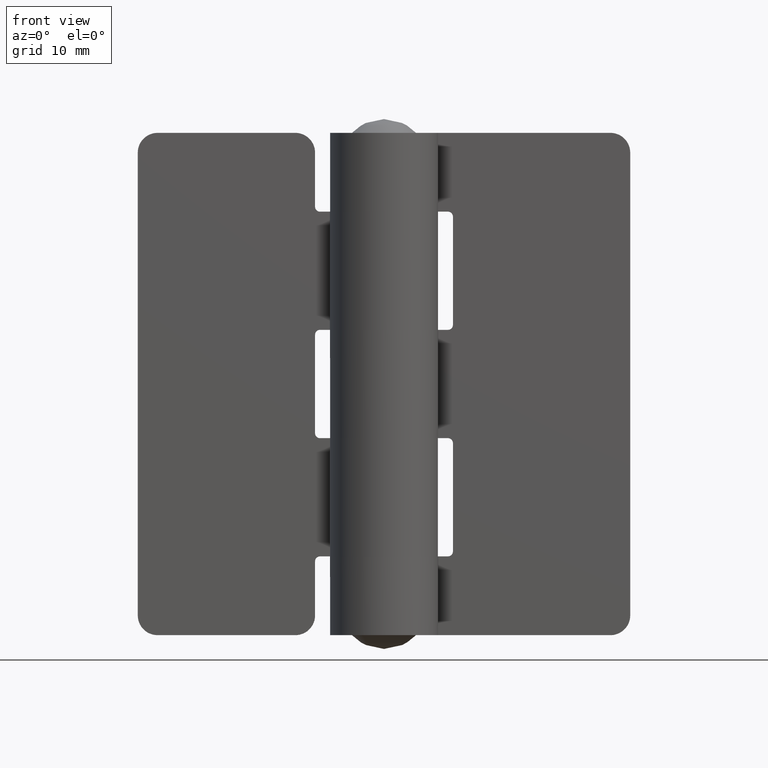
[diagram: clean part render]
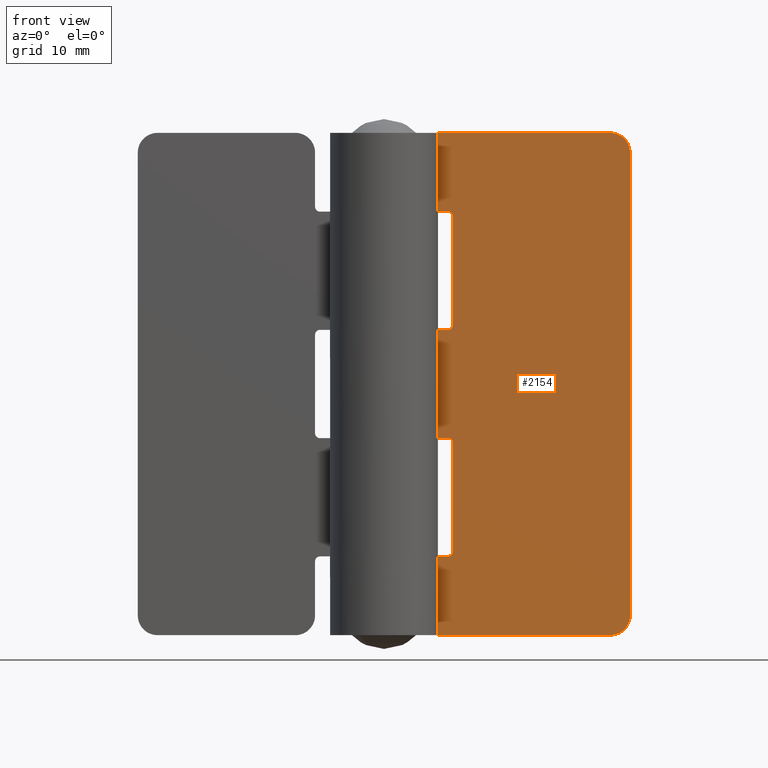
[diagram: same view with one face highlighted and labeled with its STEP entity id]
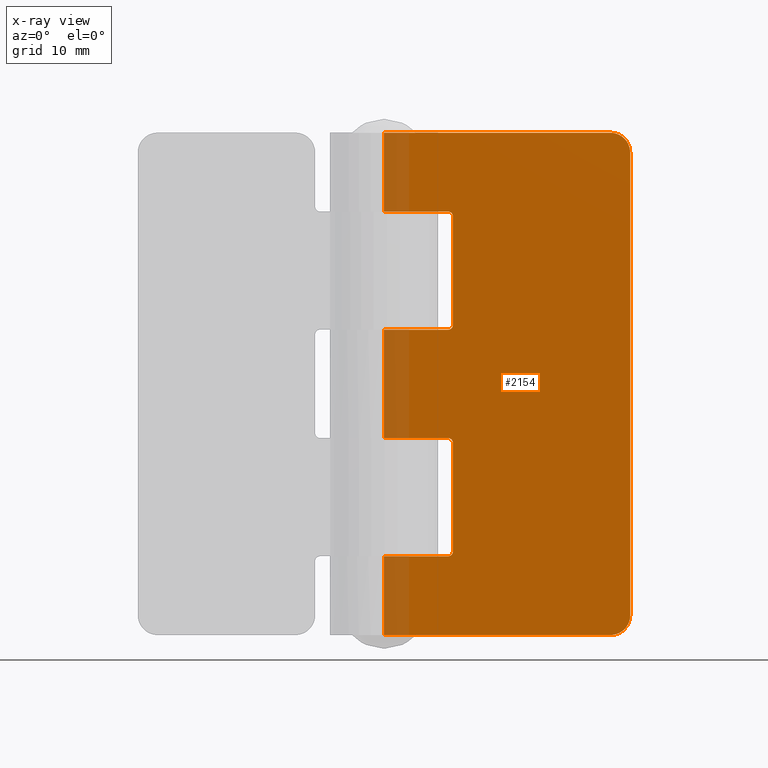
[diagram: x-ray of the same camera — body ghosted, the highlighted face saturated]
A machine part, front view. The second image highlights one B-rep face of the part: STEP entity #2154.
The next image is the same camera in x-ray: the body ghosted, the highlighted face saturated — about 6% of this face is hidden behind the body in this view.
In plain terms, the highlighted face is a freeform B-spline surface patch.
Its self-contained STEP definition (entity closure, byte-faithful):
#1215=CARTESIAN_POINT('',(6.499999999999900,2.999999000000000,20.0));
#1216=VERTEX_POINT('',#1215);
#1217=CARTESIAN_POINT('',(6.999999999999901,2.999999000000000,19.500000000000000));
#1218=VERTEX_POINT('',#1217);
#1219=CARTESIAN_POINT('',(6.499999999999900,2.999999000000000,20.0));
#1220=CARTESIAN_POINT('',(6.999999999999899,2.999999000000001,19.999999999999996));
#1221=CARTESIAN_POINT('',(6.999999999999901,2.999999000000000,19.500000000000000));
#1229=(BOUNDED_CURVE()B_SPLINE_CURVE(2,(#1219,#1220,#1221),.UNSPECIFIED.,.F.,.U.)CURVE()GEOMETRIC_REPRESENTATION_ITEM()QUASI_UNIFORM_CURVE()RATIONAL_B_SPLINE_CURVE((1.0,0.707106781186548,1.0))REPRESENTATION_ITEM(''));
#1230=EDGE_CURVE('',#1216,#1218,#1229,.T.);
#1276=CARTESIAN_POINT('',(6.999999999999901,2.999999000000000,8.500000000000000));
#1277=VERTEX_POINT('',#1276);
#1278=CARTESIAN_POINT('',(6.499999999999900,2.999999000000000,8.0));
#1279=VERTEX_POINT('',#1278);
#1280=CARTESIAN_POINT('',(6.999999999999901,2.999999000000000,8.500000000000000));
#1281=CARTESIAN_POINT('',(6.999999999999899,2.999999000000001,8.0));
#1282=CARTESIAN_POINT('',(6.499999999999900,2.999999000000000,8.0));
#1290=(BOUNDED_CURVE()B_SPLINE_CURVE(2,(#1280,#1281,#1282),.UNSPECIFIED.,.F.,.U.)CURVE()GEOMETRIC_REPRESENTATION_ITEM()QUASI_UNIFORM_CURVE()RATIONAL_B_SPLINE_CURVE((1.0,0.707106781186548,1.0))REPRESENTATION_ITEM(''));
#1291=EDGE_CURVE('',#1277,#1279,#1290,.T.);
#1337=CARTESIAN_POINT('',(6.499999999999900,2.999999000000000,43.0));
#1338=VERTEX_POINT('',#1337);
#1339=CARTESIAN_POINT('',(6.999999999999901,2.999999000000000,42.500000000000000));
#1340=VERTEX_POINT('',#1339);
#1341=CARTESIAN_POINT('',(6.499999999999900,2.999999000000000,43.0));
#1342=CARTESIAN_POINT('',(6.999999999999899,2.999999000000001,42.999999999999993));
#1343=CARTESIAN_POINT('',(6.999999999999901,2.999999000000000,42.500000000000000));
#1351=(BOUNDED_CURVE()B_SPLINE_CURVE(2,(#1341,#1342,#1343),.UNSPECIFIED.,.F.,.U.)CURVE()GEOMETRIC_REPRESENTATION_ITEM()QUASI_UNIFORM_CURVE()RATIONAL_B_SPLINE_CURVE((1.0,0.707106781186548,1.0))REPRESENTATION_ITEM(''));
#1352=EDGE_CURVE('',#1338,#1340,#1351,.T.);
#1398=CARTESIAN_POINT('',(6.999999999999901,2.999999000000000,31.500000000000000));
#1399=VERTEX_POINT('',#1398);
#1400=CARTESIAN_POINT('',(6.499999999999900,2.999999000000000,31.0));
#1401=VERTEX_POINT('',#1400);
#1402=CARTESIAN_POINT('',(6.999999999999901,2.999999000000000,31.500000000000000));
#1403=CARTESIAN_POINT('',(6.999999999999899,2.999999000000001,31.000000000000007));
#1404=CARTESIAN_POINT('',(6.499999999999900,2.999999000000000,31.0));
#1412=(BOUNDED_CURVE()B_SPLINE_CURVE(2,(#1402,#1403,#1404),.UNSPECIFIED.,.F.,.U.)CURVE()GEOMETRIC_REPRESENTATION_ITEM()QUASI_UNIFORM_CURVE()RATIONAL_B_SPLINE_CURVE((1.0,0.707106781186548,1.0))REPRESENTATION_ITEM(''));
#1413=EDGE_CURVE('',#1399,#1401,#1412,.T.);
#1476=CARTESIAN_POINT('',(23.000008000000001,2.999999000000000,51.0));
#1477=VERTEX_POINT('',#1476);
#1483=CARTESIAN_POINT('',(25.000008000000001,2.999999000000000,49.0));
#1484=VERTEX_POINT('',#1483);
#1485=CARTESIAN_POINT('',(25.000008000000001,2.999999000000000,49.0));
#1486=CARTESIAN_POINT('',(25.000008000000005,2.999999000000001,51.000000000000007));
#1487=CARTESIAN_POINT('',(23.000008000000001,2.999999000000000,51.000000000000007));
#1495=(BOUNDED_CURVE()B_SPLINE_CURVE(2,(#1485,#1486,#1487),.UNSPECIFIED.,.F.,.U.)CURVE()GEOMETRIC_REPRESENTATION_ITEM()QUASI_UNIFORM_CURVE()RATIONAL_B_SPLINE_CURVE((1.0,0.707106781186548,1.0))REPRESENTATION_ITEM(''));
#1496=EDGE_CURVE('',#1484,#1477,#1495,.T.);
#1537=CARTESIAN_POINT('',(25.000008000000001,2.999999000000000,2.0));
#1538=VERTEX_POINT('',#1537);
#1544=CARTESIAN_POINT('',(23.000008000000001,2.999999000000000,0.0));
#1545=VERTEX_POINT('',#1544);
#1546=CARTESIAN_POINT('',(23.000008000000001,2.999999000000000,0.0));
#1547=CARTESIAN_POINT('',(25.000008000000005,2.999999000000001,0.0));
#1548=CARTESIAN_POINT('',(25.000008000000001,2.999999000000000,2.0));
#1556=(BOUNDED_CURVE()B_SPLINE_CURVE(2,(#1546,#1547,#1548),.UNSPECIFIED.,.F.,.U.)CURVE()GEOMETRIC_REPRESENTATION_ITEM()QUASI_UNIFORM_CURVE()RATIONAL_B_SPLINE_CURVE((1.0,0.707106781186548,1.0))REPRESENTATION_ITEM(''));
#1557=EDGE_CURVE('',#1545,#1538,#1556,.T.);
#1580=CARTESIAN_POINT('',(0.0,2.999999000000000,20.0));
#1581=VERTEX_POINT('',#1580);
#1582=CARTESIAN_POINT('',(6.499999999999900,2.999999000000000,20.0));
#1583=CARTESIAN_POINT('',(0.0,2.999999000000000,20.0));
#1584=QUASI_UNIFORM_CURVE('',1,(#1582,#1583),.UNSPECIFIED.,.F.,.U.);
#1585=EDGE_CURVE('',#1216,#1581,#1584,.T.);
#1648=CARTESIAN_POINT('',(6.999999999999901,2.999999000000000,8.500000000000000));
#1649=CARTESIAN_POINT('',(6.999999999999901,2.999999000000000,19.500000000000000));
#1650=QUASI_UNIFORM_CURVE('',1,(#1648,#1649),.UNSPECIFIED.,.F.,.U.);
#1651=EDGE_CURVE('',#1277,#1218,#1650,.T.);
#1662=CARTESIAN_POINT('',(0.0,2.999999000000000,8.0));
#1663=VERTEX_POINT('',#1662);
#1664=CARTESIAN_POINT('',(0.0,2.999999000000000,8.0));
#1665=CARTESIAN_POINT('',(6.499999999999900,2.999999000000000,8.0));
#1666=QUASI_UNIFORM_CURVE('',1,(#1664,#1665),.UNSPECIFIED.,.F.,.U.);
#1667=EDGE_CURVE('',#1663,#1279,#1666,.T.);
#1732=CARTESIAN_POINT('',(0.0,2.999999000000000,31.0));
#1733=VERTEX_POINT('',#1732);
#1734=CARTESIAN_POINT('',(0.0,2.999999000000000,31.0));
#1735=CARTESIAN_POINT('',(6.499999999999900,2.999999000000000,31.0));
#1736=QUASI_UNIFORM_CURVE('',1,(#1734,#1735),.UNSPECIFIED.,.F.,.U.);
#1737=EDGE_CURVE('',#1733,#1401,#1736,.T.);
#1808=CARTESIAN_POINT('',(6.999999999999901,2.999999000000000,31.500000000000000));
#1809=CARTESIAN_POINT('',(6.999999999999901,2.999999000000000,42.500000000000000));
#1810=QUASI_UNIFORM_CURVE('',1,(#1808,#1809),.UNSPECIFIED.,.F.,.U.);
#1811=EDGE_CURVE('',#1399,#1340,#1810,.T.);
#1830=CARTESIAN_POINT('',(0.0,2.999999000000000,43.0));
#1831=VERTEX_POINT('',#1830);
#1832=CARTESIAN_POINT('',(6.499999999999900,2.999999000000000,43.0));
#1833=CARTESIAN_POINT('',(0.0,2.999999000000000,43.0));
#1834=QUASI_UNIFORM_CURVE('',1,(#1832,#1833),.UNSPECIFIED.,.F.,.U.);
#1835=EDGE_CURVE('',#1338,#1831,#1834,.T.);
#1900=CARTESIAN_POINT('',(0.0,2.999999000000000,0.0));
#1901=VERTEX_POINT('',#1900);
#1902=CARTESIAN_POINT('',(23.000008000000001,2.999999000000000,0.0));
#1903=CARTESIAN_POINT('',(0.0,2.999999000000000,0.0));
#1904=QUASI_UNIFORM_CURVE('',1,(#1902,#1903),.UNSPECIFIED.,.F.,.U.);
#1905=EDGE_CURVE('',#1545,#1901,#1904,.T.);
#1962=CARTESIAN_POINT('',(0.0,2.999999000000000,51.0));
#1963=VERTEX_POINT('',#1962);
#1964=CARTESIAN_POINT('',(23.000008000000001,2.999999000000000,51.0));
#1965=CARTESIAN_POINT('',(0.0,2.999999000000000,51.0));
#1966=QUASI_UNIFORM_CURVE('',1,(#1964,#1965),.UNSPECIFIED.,.F.,.U.);
#1967=EDGE_CURVE('',#1477,#1963,#1966,.T.);
#2108=CARTESIAN_POINT('',(0.0,2.999999000000000,31.0));
#2109=CARTESIAN_POINT('',(0.0,2.999999000000000,20.0));
#2110=QUASI_UNIFORM_CURVE('',1,(#2108,#2109),.UNSPECIFIED.,.F.,.U.);
#2111=EDGE_CURVE('',#1733,#1581,#2110,.T.);
#2117=CARTESIAN_POINT('',(-1.248750261827544,2.999999000000000,53.547449901152113));
#2118=CARTESIAN_POINT('',(-1.248750261827544,2.999999000000000,-2.547451269078700));
#2119=CARTESIAN_POINT('',(26.248757144240109,2.999999000000000,53.547449901152113));
#2120=CARTESIAN_POINT('',(26.248757144240109,2.999999000000000,-2.547451269078700));
#2121=B_SPLINE_SURFACE_WITH_KNOTS('',1,1,((#2117,#2119),(#2118,#2120)),.UNSPECIFIED.,.F.,.F.,.U.,(2,2),(2,2),(0.0,56.094901170230813),(0.0,27.497507406067651),.UNSPECIFIED.);
#2122=ORIENTED_EDGE('',*,*,#1905,.F.);
#2123=ORIENTED_EDGE('',*,*,#1557,.T.);
#2124=CARTESIAN_POINT('',(25.000008000000001,2.999999000000000,49.0));
#2125=CARTESIAN_POINT('',(25.000008000000001,2.999999000000000,2.0));
#2126=QUASI_UNIFORM_CURVE('',1,(#2124,#2125),.UNSPECIFIED.,.F.,.U.);
#2127=EDGE_CURVE('',#1484,#1538,#2126,.T.);
#2128=ORIENTED_EDGE('',*,*,#2127,.F.);
#2129=ORIENTED_EDGE('',*,*,#1496,.T.);
#2130=ORIENTED_EDGE('',*,*,#1967,.T.);
#2131=CARTESIAN_POINT('',(0.0,2.999999000000000,51.0));
#2132=CARTESIAN_POINT('',(0.0,2.999999000000000,43.0));
#2133=QUASI_UNIFORM_CURVE('',1,(#2131,#2132),.UNSPECIFIED.,.F.,.U.);
#2134=EDGE_CURVE('',#1963,#1831,#2133,.T.);
#2135=ORIENTED_EDGE('',*,*,#2134,.T.);
#2136=ORIENTED_EDGE('',*,*,#1835,.F.);
#2137=ORIENTED_EDGE('',*,*,#1352,.T.);
#2138=ORIENTED_EDGE('',*,*,#1811,.F.);
#2139=ORIENTED_EDGE('',*,*,#1413,.T.);
#2140=ORIENTED_EDGE('',*,*,#1737,.F.);
#2141=ORIENTED_EDGE('',*,*,#2111,.T.);
#2142=ORIENTED_EDGE('',*,*,#1585,.F.);
#2143=ORIENTED_EDGE('',*,*,#1230,.T.);
#2144=ORIENTED_EDGE('',*,*,#1651,.F.);
#2145=ORIENTED_EDGE('',*,*,#1291,.T.);
#2146=ORIENTED_EDGE('',*,*,#1667,.F.);
#2147=CARTESIAN_POINT('',(0.0,2.999999000000000,8.0));
#2148=CARTESIAN_POINT('',(0.0,2.999999000000000,0.0));
#2149=QUASI_UNIFORM_CURVE('',1,(#2147,#2148),.UNSPECIFIED.,.F.,.U.);
#2150=EDGE_CURVE('',#1663,#1901,#2149,.T.);
#2151=ORIENTED_EDGE('',*,*,#2150,.T.);
#2152=EDGE_LOOP('',(#2122,#2123,#2128,#2129,#2130,#2135,#2136,#2137,#2138,#2139,#2140,#2141,#2142,#2143,#2144,#2145,#2146,#2151));
#2153=FACE_OUTER_BOUND('',#2152,.T.);
#2154=ADVANCED_FACE('',(#2153),#2121,.T.);